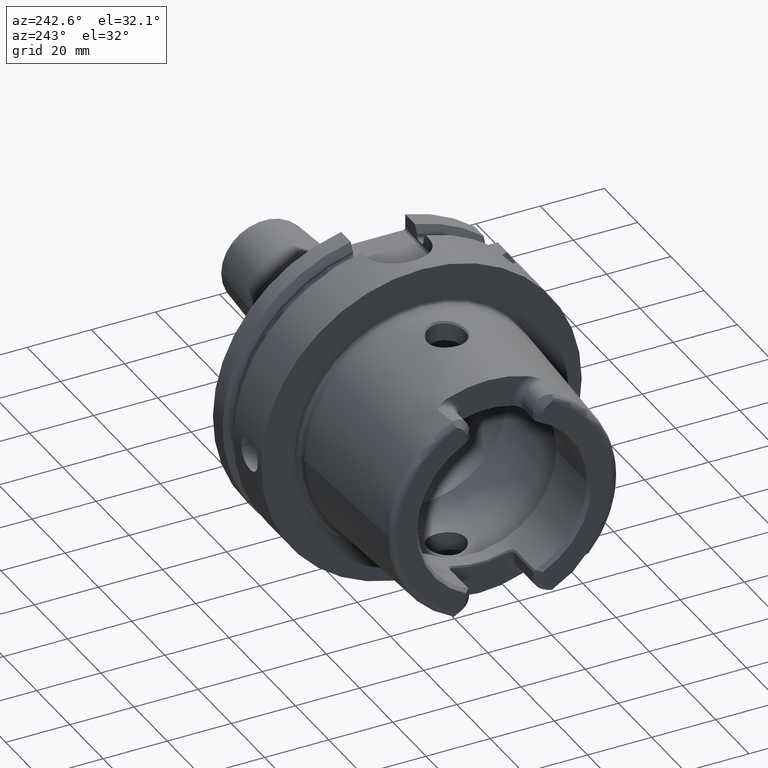
[diagram: clean part render]
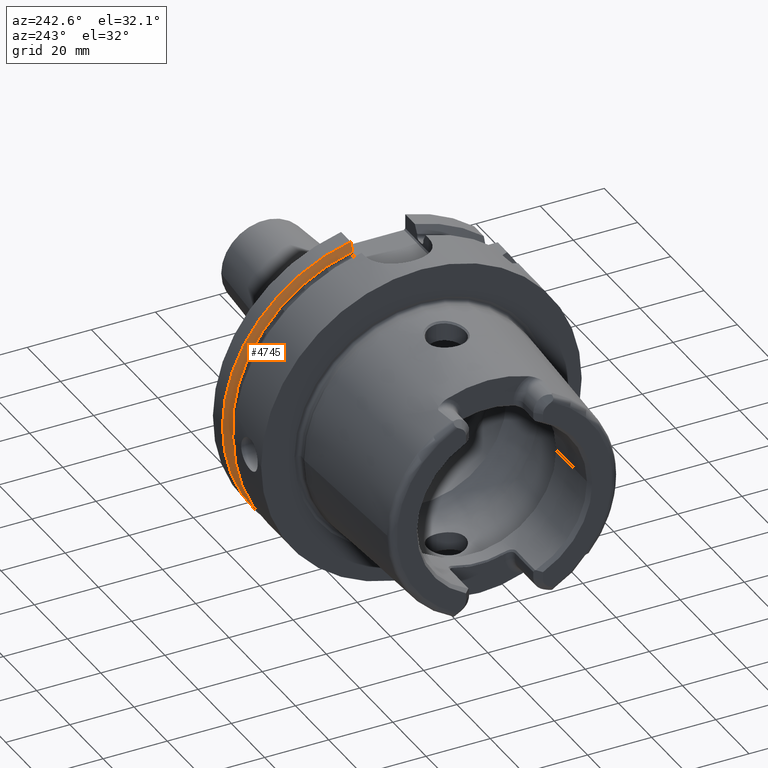
[diagram: same view with one face highlighted and labeled with its STEP entity id]
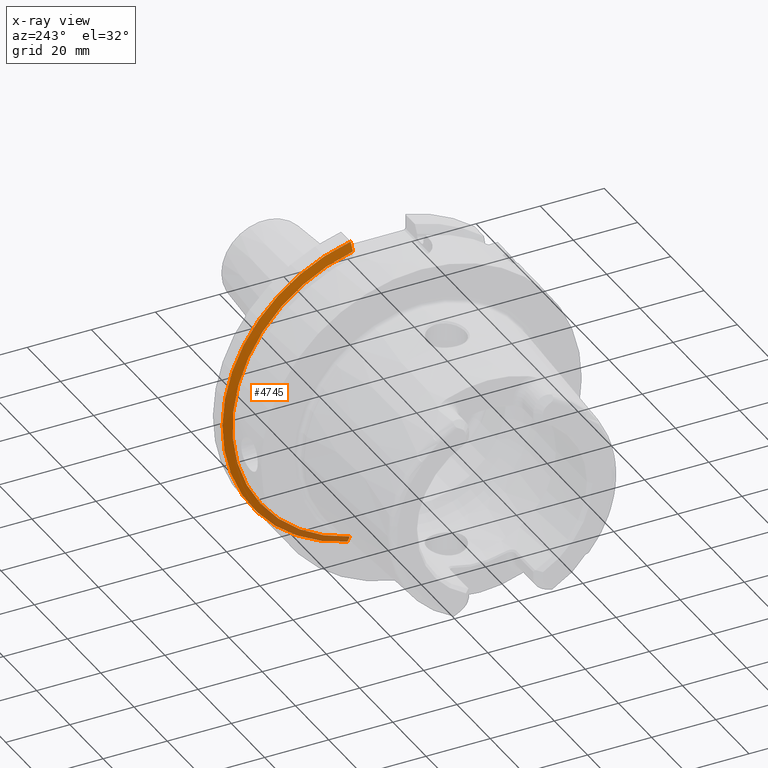
[diagram: x-ray of the same camera — body ghosted, the highlighted face saturated]
A machine part, auxiliary view. The second image highlights one B-rep face of the part: STEP entity #4745.
The next image is the same camera in x-ray: the body ghosted, the highlighted face saturated — about 16% of this face is hidden behind the body in this view.
In plain terms, the highlighted conical surface has half-angle 60 deg.
Its self-contained STEP definition (entity closure, byte-faithful):
#1646=CARTESIAN_POINT('',(2.324759526419E1,1.1E1,-4.877499359303E1));
#1647=CARTESIAN_POINT('',(2.309075618244E1,1.1E1,-4.849651763825E1));
#1648=CARTESIAN_POINT('',(2.277996511889E1,1.1E1,-4.794446101512E1));
#1649=CARTESIAN_POINT('',(2.232251548208E1,1.1E1,-4.713119970766E1));
#1650=CARTESIAN_POINT('',(2.202321854676E1,1.1E1,-4.659863454325E1));
#1651=CARTESIAN_POINT('',(2.1875E1,1.1E1,-4.633477721644E1));
#1653=CARTESIAN_POINT('',(2.324759526419E1,0.E0,0.E0));
#1654=DIRECTION('',(1.E0,0.E0,0.E0));
#1655=DIRECTION('',(0.E0,2.2E-1,-9.754998718606E-1));
#1656=AXIS2_PLACEMENT_3D('',#1653,#1654,#1655);
#1658=CARTESIAN_POINT('',(2.1875E1,1.E1,4.656083740331E1));
#1659=CARTESIAN_POINT('',(2.202341485415E1,1.E1,4.682376142925E1));
#1660=CARTESIAN_POINT('',(2.232297392293E1,1.E1,4.735424823675E1));
#1661=CARTESIAN_POINT('',(2.278043311037E1,1.E1,4.816377318979E1));
#1662=CARTESIAN_POINT('',(2.309095690730E1,1.E1,4.871289474479E1));
#1663=CARTESIAN_POINT('',(2.324759526419E1,1.E1,4.898979485566E1));
#1665=CARTESIAN_POINT('',(2.1875E1,0.E0,0.E0));
#1666=DIRECTION('',(-1.E0,0.E0,0.E0));
#1667=DIRECTION('',(0.E0,2.099843560504E-1,9.777047459300E-1));
#1668=AXIS2_PLACEMENT_3D('',#1665,#1666,#1667);
#2986=CARTESIAN_POINT('',(2.1875E1,1.E1,4.656083740331E1));
#2987=VERTEX_POINT('',#2986);
#2989=VERTEX_POINT('',#1663);
#2998=CARTESIAN_POINT('',(2.324759526419E1,1.1E1,-4.877499359303E1));
#3000=VERTEX_POINT('',#2998);
#3026=CARTESIAN_POINT('',(2.1875E1,1.1E1,-4.633477721644E1));
#3027=VERTEX_POINT('',#3026);
#4733=CARTESIAN_POINT('',(2.256129763210E1,0.E0,0.E0));
#4734=DIRECTION('',(1.E0,0.E0,0.E0));
#4735=DIRECTION('',(0.E0,-1.E0,0.E0));
#4736=AXIS2_PLACEMENT_3D('',#4733,#4734,#4735);
#4737=CONICAL_SURFACE('',#4736,4.881129763210E1,6.E1);
#4738=ORIENTED_EDGE('',*,*,#4364,.F.);
#4739=ORIENTED_EDGE('',*,*,#4295,.T.);
#4741=ORIENTED_EDGE('',*,*,#4740,.F.);
#4742=ORIENTED_EDGE('',*,*,#4697,.T.);
#4743=EDGE_LOOP('',(#4738,#4739,#4741,#4742));
#4744=FACE_OUTER_BOUND('',#4743,.F.);
#4745=ADVANCED_FACE('',(#4744),#4737,.T.);
#1652=B_SPLINE_CURVE_WITH_KNOTS('',3,(#1646,#1647,#1648,#1649,#1650,#1651),
.UNSPECIFIED.,.F.,.F.,(4,1,1,4),(0.E0,3.333333333333E-1,6.666666666667E-1,1.E0),
.UNSPECIFIED.);
#1657=CIRCLE('',#1656,5.E1);
#1664=B_SPLINE_CURVE_WITH_KNOTS('',3,(#1658,#1659,#1660,#1661,#1662,#1663),
.UNSPECIFIED.,.F.,.F.,(4,1,1,4),(0.E0,3.333333333333E-1,6.666666666667E-1,1.E0),
.UNSPECIFIED.);
#1669=CIRCLE('',#1668,4.762259526419E1);
#4295=EDGE_CURVE('',#3000,#2989,#1657,.T.);
#4364=EDGE_CURVE('',#3000,#3027,#1652,.T.);
#4697=EDGE_CURVE('',#2987,#3027,#1669,.T.);
#4740=EDGE_CURVE('',#2987,#2989,#1664,.T.);